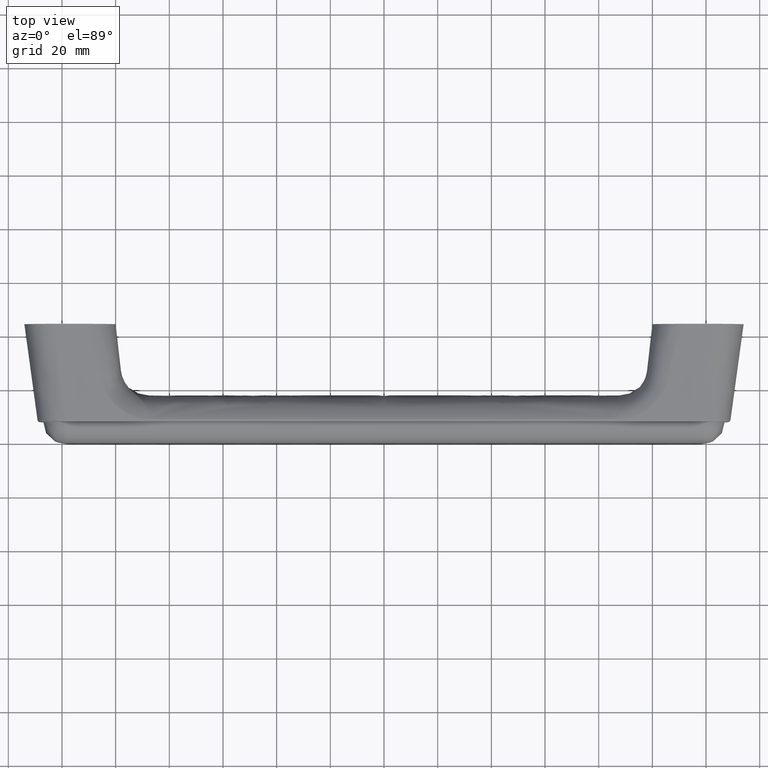
[diagram: clean part render]
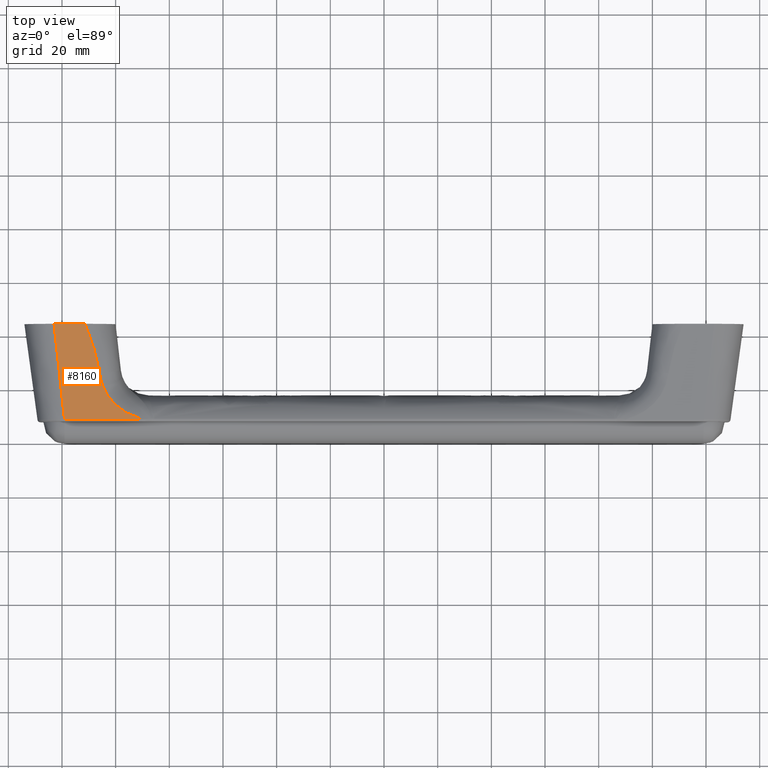
[diagram: same view with one face highlighted and labeled with its STEP entity id]
A machine part, top view. The second image highlights one B-rep face of the part: STEP entity #8160.
In plain terms, the highlighted face is a freeform B-spline surface patch.
Its self-contained STEP definition (entity closure, byte-faithful):
#2237=CARTESIAN_POINT('',(-119.051613881012800,10.026647000498500,-8.972613018194089));
#2238=VERTEX_POINT('',#2237);
#2432=CARTESIAN_POINT('',(-90.210512625287706,10.026647000498500,-8.972613018194060));
#2433=VERTEX_POINT('',#2432);
#2447=CARTESIAN_POINT('',(-119.051613881012800,10.026647000498500,-8.972613018194089));
#2448=CARTESIAN_POINT('',(-90.210512625287706,10.026647000498500,-8.972613018194060));
#2449=QUASI_UNIFORM_CURVE('',1,(#2447,#2448),.UNSPECIFIED.,.F.,.U.);
#2450=EDGE_CURVE('',#2238,#2433,#2449,.T.);
#5351=CARTESIAN_POINT('',(-105.986903452424400,10.494442814030361,-26.047161413613701));
#5352=VERTEX_POINT('',#5351);
#5379=CARTESIAN_POINT('',(-111.434945395078000,11.0,-44.500000000000000));
#5380=VERTEX_POINT('',#5379);
#5429=CARTESIAN_POINT('',(-105.986903452424400,10.494442814030400,-26.047161413613701));
#5430=CARTESIAN_POINT('',(-106.649198594902200,10.654724288027300,-31.897435626173650));
#5431=CARTESIAN_POINT('',(-108.806579152353000,10.810372118778121,-37.578581848351192));
#5432=CARTESIAN_POINT('',(-110.963959709804000,10.966019949528940,-43.259728070528702));
#5433=CARTESIAN_POINT('',(-111.120954938228710,10.977346633019311,-43.673152047019137));
#5434=CARTESIAN_POINT('',(-111.277950166653300,10.988673316509679,-44.086576023509593));
#5435=CARTESIAN_POINT('',(-111.434945395078000,11.000000000000050,-44.500000000000050));
#5436=B_SPLINE_CURVE_WITH_KNOTS('',3,(#5429,#5430,#5431,#5432,#5433,#5434,#5435),.UNSPECIFIED.,.F.,.U.,(4,3,4),(0.0,0.311332274533218,0.333988305889159),.UNSPECIFIED.);
#5437=EDGE_CURVE('',#5352,#5380,#5436,.T.);
#5610=CARTESIAN_POINT('',(-90.210512625287677,10.026647000498491,-8.972613018194256));
#5611=CARTESIAN_POINT('',(-90.458894441901222,10.028651578376850,-9.045780115903211));
#5612=CARTESIAN_POINT('',(-90.706724795572043,10.030724295372160,-9.121434291555691));
#5613=CARTESIAN_POINT('',(-91.200066964508181,10.035014414848920,-9.278023663476477));
#5614=CARTESIAN_POINT('',(-91.445668837667029,10.037232509596789,-9.358984127470617));
#5615=CARTESIAN_POINT('',(-92.178938000490206,10.044128359883491,-9.610682680646697));
#5616=CARTESIAN_POINT('',(-92.663060421744447,10.049048256050391,-9.790258903374912));
#5617=CARTESIAN_POINT('',(-93.620311978227349,10.059638970809150,-10.176820019271450));
#5618=CARTESIAN_POINT('',(-94.093444359127162,10.065309567697760,-10.383796820270380));
#5619=CARTESIAN_POINT('',(-94.793910646004704,10.074446096075951,-10.717280129540949));
#5620=CARTESIAN_POINT('',(-95.025862130882018,10.077596612908190,-10.832274002009701));
#5621=CARTESIAN_POINT('',(-95.486536843625345,10.084118160309670,-11.070310498913800));
#5622=CARTESIAN_POINT('',(-95.714655952246204,10.087480861474230,-11.193049100057150));
#5623=CARTESIAN_POINT('',(-96.841250887813615,10.104776638913769,-11.824345021023390));
#5624=CARTESIAN_POINT('',(-97.700386234868219,10.120194052785410,-12.387080666937001));
#5625=CARTESIAN_POINT('',(-98.921436203992002,10.145857996821730,-13.323814690178979));
#5626=CARTESIAN_POINT('',(-99.317178052281719,10.154835589094910,-13.651496831208631));
#5627=CARTESIAN_POINT('',(-99.893174108030465,10.168962821500010,-14.167140850279891));
#5628=CARTESIAN_POINT('',(-100.082234825145800,10.173782108982801,-14.343044855779720));
#5629=CARTESIAN_POINT('',(-100.454334651851100,10.183646568444690,-14.703097651475019));
#5630=CARTESIAN_POINT('',(-100.637651403525690,10.188700342785040,-14.887560427878141));
#5631=CARTESIAN_POINT('',(-101.531686458354300,10.214340642408880,-15.823431430003620));
#5632=CARTESIAN_POINT('',(-102.179997996602400,10.236155975194629,-16.619691132715111));
#5633=CARTESIAN_POINT('',(-103.052694933115700,10.270821844511630,-17.884995451822789));
#5634=CARTESIAN_POINT('',(-103.326904143846410,10.282702141115070,-18.318626308362241));
#5635=CARTESIAN_POINT('',(-103.712642154842300,10.301020634364299,-18.987251359009282));
#5636=CARTESIAN_POINT('',(-103.836954226414310,10.307209897024199,-19.213159461992099));
#5637=CARTESIAN_POINT('',(-104.016908516521800,10.316620637300300,-19.556651506240879));
#5638=CARTESIAN_POINT('',(-104.075807309587600,10.319778698279350,-19.671920740087479));
#5639=CARTESIAN_POINT('',(-104.191409924710100,10.326137563825460,-19.904019348853009));
#5640=CARTESIAN_POINT('',(-104.248158241614310,10.329341101347920,-20.020948476650830));
#5641=CARTESIAN_POINT('',(-104.525152731577710,10.345396130623421,-20.606957086442961));
#5642=CARTESIAN_POINT('',(-104.726054695047300,10.358404770384491,-21.081772471134052));
#5643=CARTESIAN_POINT('',(-105.087462392677590,10.384743399033271,-22.043132484463719));
#5644=CARTESIAN_POINT('',(-105.247966796121500,10.398073398506741,-22.529677499482531));
#5645=CARTESIAN_POINT('',(-105.528779215803790,10.425053156850611,-23.514438748329692));
#5646=CARTESIAN_POINT('',(-105.649088256076990,10.438702907574880,-24.012654684824511));
#5647=CARTESIAN_POINT('',(-105.848930720225000,10.466326776147360,-25.020925958669910));
#5648=CARTESIAN_POINT('',(-105.928467850130100,10.480300864514341,-25.530980219956358));
#5649=CARTESIAN_POINT('',(-105.986903452424400,10.494442814030361,-26.047161413613701));
#5650=B_SPLINE_CURVE_WITH_KNOTS('',3,(#5610,#5611,#5612,#5613,#5614,#5615,#5616,#5617,#5618,#5619,#5620,#5621,#5622,#5623,#5624,#5625,#5626,#5627,#5628,#5629,#5630,#5631,#5632,#5633,#5634,#5635,#5636,#5637,#5638,#5639,#5640,#5641,#5642,#5643,#5644,#5645,#5646,#5647,#5648,#5649),.UNSPECIFIED.,.F.,.U.,(4,2,2,2,2,2,2,2,2,2,2,2,2,2,2,2,2,2,2,4),(0.0,0.031250000000000,0.062499999999999,0.124999999999999,0.187499999999998,0.218749999999998,0.249999999999998,0.375000000000000,0.437500000000000,0.468750000000000,0.500000000000000,0.625000000000003,0.687500000000004,0.718750000000005,0.734375000000006,0.750000000000006,0.812500000000004,0.875000000000003,0.937500000000002,1.0),.UNSPECIFIED.);
#5651=EDGE_CURVE('',#2433,#5352,#5650,.T.);
#6656=CARTESIAN_POINT('',(-122.977883841506200,11.0,-44.500000000000000));
#6657=VERTEX_POINT('',#6656);
#6658=CARTESIAN_POINT('',(-122.977883841506100,11.000000000000011,-44.500000000000043));
#6659=CARTESIAN_POINT('',(-121.669127188008400,10.675549000166180,-32.657537672731380));
#6660=CARTESIAN_POINT('',(-120.360370534510690,10.351098000332341,-20.815075345462748));
#6661=CARTESIAN_POINT('',(-119.051613881012800,10.026647000498510,-8.972613018194087));
#6662=B_SPLINE_CURVE_WITH_KNOTS('',3,(#6658,#6659,#6660,#6661),.UNSPECIFIED.,.F.,.U.,(4,4),(0.407825264908886,0.594879132900888),.UNSPECIFIED.);
#6663=EDGE_CURVE('',#6657,#2238,#6662,.T.);
#8144=CARTESIAN_POINT('',(-124.614612549331700,11.048618980438549,-46.274592910882248));
#8145=CARTESIAN_POINT('',(-124.614612549331700,9.978027993952571,-7.198019154393047));
#8146=CARTESIAN_POINT('',(-88.573779230052168,11.048618980438549,-46.274592910882248));
#8147=CARTESIAN_POINT('',(-88.573779230052168,9.978027993952571,-7.198019154393047));
#8148=B_SPLINE_SURFACE_WITH_KNOTS('',1,1,((#8144,#8146),(#8145,#8147)),.UNSPECIFIED.,.F.,.F.,.U.,(2,2),(2,2),(0.0,39.091236634400367),(0.0,36.040833319279507),.UNSPECIFIED.);
#8149=ORIENTED_EDGE('',*,*,#6663,.T.);
#8150=ORIENTED_EDGE('',*,*,#2450,.T.);
#8151=ORIENTED_EDGE('',*,*,#5651,.T.);
#8152=ORIENTED_EDGE('',*,*,#5437,.T.);
#8153=CARTESIAN_POINT('',(-122.977883841506200,11.0,-44.500000000000000));
#8154=CARTESIAN_POINT('',(-111.434945395078000,11.0,-44.500000000000000));
#8155=QUASI_UNIFORM_CURVE('',1,(#8153,#8154),.UNSPECIFIED.,.F.,.U.);
#8156=EDGE_CURVE('',#6657,#5380,#8155,.T.);
#8157=ORIENTED_EDGE('',*,*,#8156,.F.);
#8158=EDGE_LOOP('',(#8149,#8150,#8151,#8152,#8157));
#8159=FACE_OUTER_BOUND('',#8158,.T.);
#8160=ADVANCED_FACE('',(#8159),#8148,.T.);